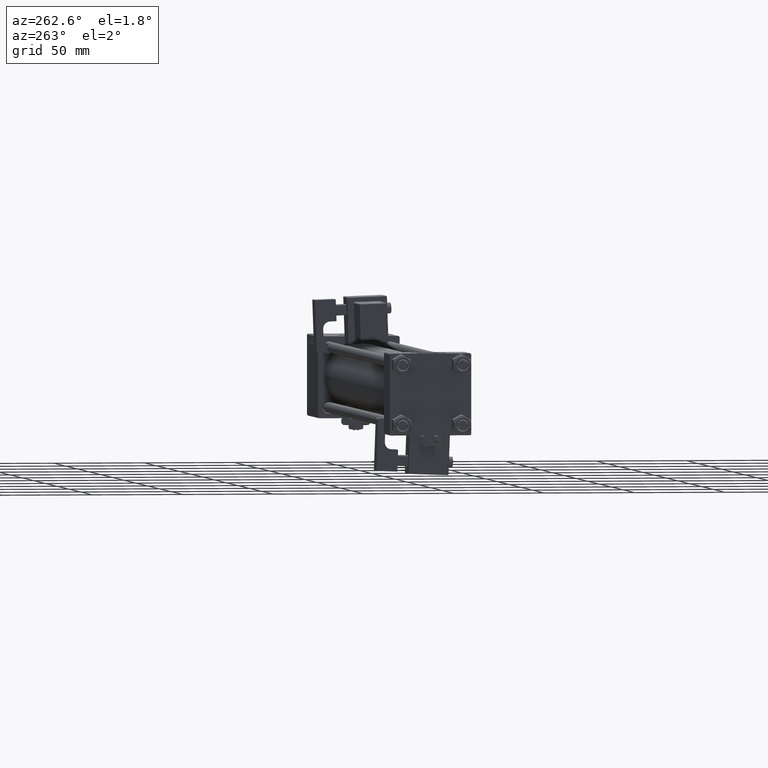
[diagram: clean part render]
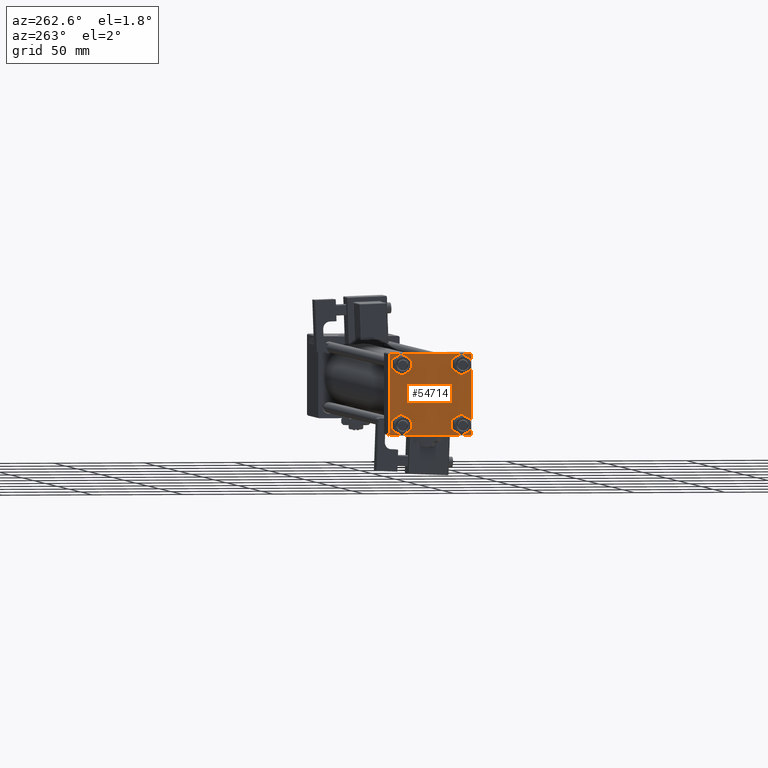
[diagram: same view with one face highlighted and labeled with its STEP entity id]
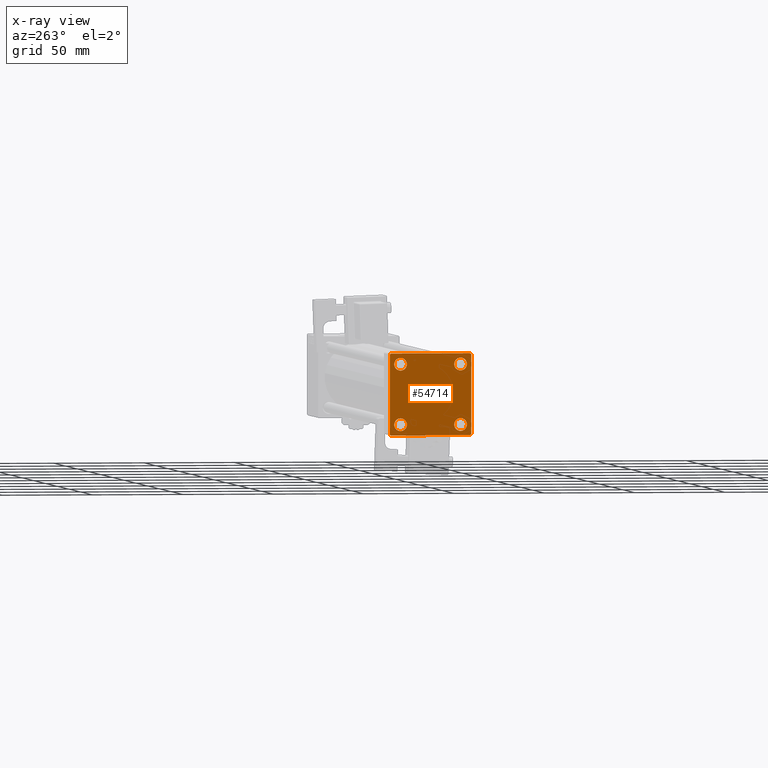
[diagram: x-ray of the same camera — body ghosted, the highlighted face saturated]
A machine part, auxiliary view. The second image highlights one B-rep face of the part: STEP entity #54714.
The next image is the same camera in x-ray: the body ghosted, the highlighted face saturated — about 0% of this face is hidden behind the body in this view.
In plain terms, the highlighted planar face has unit normal (-1, 0, 0).
Its self-contained STEP definition (entity closure, byte-faithful):
#105 = VECTOR ( 'NONE', #33758, 1000.000000000000000 ) ;
#603 = DIRECTION ( 'NONE',  ( 0.000000000000000000, 0.000000000000000000, 1.000000000000000000 ) ) ;
#919 = CIRCLE ( 'NONE', #11754, 3.499999999999996003 ) ;
#968 = VERTEX_POINT ( 'NONE', #51959 ) ;
#970 = VECTOR ( 'NONE', #10605, 999.9999999999998863 ) ;
#1074 = ORIENTED_EDGE ( 'NONE', *, *, #11173, .T. ) ;
#2198 = DIRECTION ( 'NONE',  ( 0.000000000000000000, 0.000000000000000000, 1.000000000000000000 ) ) ;
#2242 = LINE ( 'NONE', #33714, #21378 ) ;
#2474 = EDGE_CURVE ( 'NONE', #53949, #968, #23449, .T. ) ;
#2956 = EDGE_CURVE ( 'NONE', #32694, #15056, #53203, .T. ) ;
#3094 = DIRECTION ( 'NONE',  ( 1.000000000000000000, -0.000000000000000000, 0.000000000000000000 ) ) ;
#3568 = EDGE_CURVE ( 'NONE', #6486, #11495, #15126, .T. ) ;
#4281 = DIRECTION ( 'NONE',  ( 0.000000000000000000, 0.000000000000000000, 1.000000000000000000 ) ) ;
#4440 = VERTEX_POINT ( 'NONE', #37992 ) ;
#4482 = AXIS2_PLACEMENT_3D ( 'NONE', #25182, #29412, #4281 ) ;
#4513 = ORIENTED_EDGE ( 'NONE', *, *, #16772, .T. ) ;
#4691 = CARTESIAN_POINT ( 'NONE',  ( 0.000000000000000000, 22.50000000000000000, -21.99999999999996803 ) ) ;
#5660 = ORIENTED_EDGE ( 'NONE', *, *, #3568, .T. ) ;
#6400 = AXIS2_PLACEMENT_3D ( 'NONE', #10657, #40844, #2198 ) ;
#6486 = VERTEX_POINT ( 'NONE', #19664 ) ;
#6503 = CARTESIAN_POINT ( 'NONE',  ( 0.000000000000000000, -16.59999999999999076, 20.10000000000000853 ) ) ;
#6903 = CIRCLE ( 'NONE', #44774, 3.499999999999996003 ) ;
#7059 = CARTESIAN_POINT ( 'NONE',  ( 0.000000000000000000, 22.25000000000014566, -22.24999999999984013 ) ) ;
#9251 = VECTOR ( 'NONE', #36296, 1000.000000000000114 ) ;
#9759 = ORIENTED_EDGE ( 'NONE', *, *, #50745, .T. ) ;
#10373 = EDGE_LOOP ( 'NONE', ( #1074, #11081 ) ) ;
#10459 = DIRECTION ( 'NONE',  ( 0.000000000000000000, -0.7071067811865426878, 0.7071067811865524577 ) ) ;
#10605 = DIRECTION ( 'NONE',  ( -0.000000000000000000, 0.7071067811865525687, 0.7071067811865425767 ) ) ;
#10657 = CARTESIAN_POINT ( 'NONE',  ( 0.000000000000000000, 16.59999999999999787, 16.60000000000000497 ) ) ;
#10792 = VERTEX_POINT ( 'NONE', #50611 ) ;
#11073 = VECTOR ( 'NONE', #28508, 1000.000000000000000 ) ;
#11081 = ORIENTED_EDGE ( 'NONE', *, *, #2956, .T. ) ;
#11173 = EDGE_CURVE ( 'NONE', #15056, #32694, #919, .T. ) ;
#11495 = VERTEX_POINT ( 'NONE', #42768 ) ;
#11720 = FACE_OUTER_BOUND ( 'NONE', #50878, .T. ) ;
#11754 = AXIS2_PLACEMENT_3D ( 'NONE', #12165, #29370, #51642 ) ;
#11826 = ORIENTED_EDGE ( 'NONE', *, *, #34659, .T. ) ;
#11827 = CARTESIAN_POINT ( 'NONE',  ( 0.000000000000000000, -16.59999999999999076, 13.10000000000001030 ) ) ;
#12165 = CARTESIAN_POINT ( 'NONE',  ( 0.000000000000000000, 16.59999999999999787, -16.60000000000000497 ) ) ;
#12264 = PLANE ( 'NONE',  #33935 ) ;
#12599 = VERTEX_POINT ( 'NONE', #24198 ) ;
#12639 = AXIS2_PLACEMENT_3D ( 'NONE', #33810, #3094, #12947 ) ;
#12947 = DIRECTION ( 'NONE',  ( 0.000000000000000000, 0.000000000000000000, 1.000000000000000000 ) ) ;
#14003 = AXIS2_PLACEMENT_3D ( 'NONE', #44035, #39239, #603 ) ;
#15056 = VERTEX_POINT ( 'NONE', #41215 ) ;
#15126 = LINE ( 'NONE', #45587, #970 ) ;
#15967 = EDGE_CURVE ( 'NONE', #4440, #10792, #31671, .T. ) ;
#16094 = DIRECTION ( 'NONE',  ( 1.000000000000000000, -0.000000000000000000, 0.000000000000000000 ) ) ;
#16308 = CARTESIAN_POINT ( 'NONE',  ( 0.000000000000000000, 22.50000000000000000, 22.50000000000000355 ) ) ;
#16772 = EDGE_CURVE ( 'NONE', #12599, #35642, #24444, .T. ) ;
#17815 = LINE ( 'NONE', #34998, #22092 ) ;
#18455 = EDGE_LOOP ( 'NONE', ( #34678, #23376 ) ) ;
#19119 = CARTESIAN_POINT ( 'NONE',  ( 0.000000000000000000, 22.24999999999999645, 22.24999999999999645 ) ) ;
#19286 = DIRECTION ( 'NONE',  ( 0.000000000000000000, 0.000000000000000000, 1.000000000000000000 ) ) ;
#19664 = CARTESIAN_POINT ( 'NONE',  ( 0.000000000000000000, -22.50000000000000000, 22.00000000000000000 ) ) ;
#20462 = FACE_BOUND ( 'NONE', #18455, .T. ) ;
#20739 = DIRECTION ( 'NONE',  ( -0.000000000000000000, 0.000000000000000000, 1.000000000000000000 ) ) ;
#20741 = AXIS2_PLACEMENT_3D ( 'NONE', #50276, #44953, #19286 ) ;
#20777 = CIRCLE ( 'NONE', #6400, 3.499999999999996003 ) ;
#21378 = VECTOR ( 'NONE', #27355, 1000.000000000000000 ) ;
#21924 = LINE ( 'NONE', #16308, #105 ) ;
#22092 = VECTOR ( 'NONE', #10459, 1000.000000000000000 ) ;
#22539 = EDGE_LOOP ( 'NONE', ( #49077, #55471 ) ) ;
#22743 = VERTEX_POINT ( 'NONE', #11827 ) ;
#23376 = ORIENTED_EDGE ( 'NONE', *, *, #55161, .T. ) ;
#23449 = CIRCLE ( 'NONE', #20741, 3.499999999999996003 ) ;
#24198 = CARTESIAN_POINT ( 'NONE',  ( 0.000000000000000000, 21.99999999999999289, 22.50000000000000355 ) ) ;
#24444 = LINE ( 'NONE', #19119, #9251 ) ;
#24806 = DIRECTION ( 'NONE',  ( 0.000000000000000000, -1.000000000000000000, -2.312964634635742957E-16 ) ) ;
#24821 = LINE ( 'NONE', #7059, #11073 ) ;
#25182 = CARTESIAN_POINT ( 'NONE',  ( 0.000000000000000000, -16.59999999999999076, 16.60000000000000853 ) ) ;
#25965 = ORIENTED_EDGE ( 'NONE', *, *, #38289, .F. ) ;
#26593 = CIRCLE ( 'NONE', #14003, 3.499999999999996003 ) ;
#27155 = EDGE_CURVE ( 'NONE', #35642, #31182, #2242, .T. ) ;
#27355 = DIRECTION ( 'NONE',  ( 0.000000000000000000, 0.000000000000000000, -1.000000000000000000 ) ) ;
#27488 = VECTOR ( 'NONE', #38913, 1000.000000000000000 ) ;
#27528 = ORIENTED_EDGE ( 'NONE', *, *, #42251, .T. ) ;
#28508 = DIRECTION ( 'NONE',  ( -0.000000000000000000, -0.7071067811865426878, -0.7071067811865524577 ) ) ;
#29140 = CARTESIAN_POINT ( 'NONE',  ( 0.000000000000000000, 16.59999999999999787, -20.10000000000000142 ) ) ;
#29195 = FACE_BOUND ( 'NONE', #22539, .T. ) ;
#29370 = DIRECTION ( 'NONE',  ( 1.000000000000000000, -0.000000000000000000, 0.000000000000000000 ) ) ;
#29412 = DIRECTION ( 'NONE',  ( 1.000000000000000000, -0.000000000000000000, 0.000000000000000000 ) ) ;
#31182 = VERTEX_POINT ( 'NONE', #4691 ) ;
#31327 = ORIENTED_EDGE ( 'NONE', *, *, #50614, .T. ) ;
#31393 = CARTESIAN_POINT ( 'NONE',  ( 0.000000000000000000, 16.59999999999999787, 20.10000000000000142 ) ) ;
#31671 = LINE ( 'NONE', #31948, #38915 ) ;
#31948 = CARTESIAN_POINT ( 'NONE',  ( 0.000000000000000000, 22.50000000000000000, -22.49999999999999645 ) ) ;
#32694 = VERTEX_POINT ( 'NONE', #29140 ) ;
#32698 = EDGE_CURVE ( 'NONE', #50750, #22743, #52263, .T. ) ;
#32728 = CARTESIAN_POINT ( 'NONE',  ( 0.000000000000000000, -16.59999999999999076, 16.60000000000000853 ) ) ;
#32857 = FACE_BOUND ( 'NONE', #10373, .T. ) ;
#33714 = CARTESIAN_POINT ( 'NONE',  ( 0.000000000000000000, 22.50000000000000000, 22.50000000000000355 ) ) ;
#33758 = DIRECTION ( 'NONE',  ( 0.000000000000000000, -1.000000000000000000, -7.709882115452476934E-17 ) ) ;
#33810 = CARTESIAN_POINT ( 'NONE',  ( 0.000000000000000000, 16.59999999999999787, -16.60000000000000497 ) ) ;
#33935 = AXIS2_PLACEMENT_3D ( 'NONE', #54589, #50088, #20739 ) ;
#33969 = CIRCLE ( 'NONE', #46647, 3.499999999999996003 ) ;
#34659 = EDGE_CURVE ( 'NONE', #43815, #44326, #20777, .T. ) ;
#34678 = ORIENTED_EDGE ( 'NONE', *, *, #32698, .T. ) ;
#34859 = DIRECTION ( 'NONE',  ( 1.000000000000000000, -0.000000000000000000, 0.000000000000000000 ) ) ;
#34998 = CARTESIAN_POINT ( 'NONE',  ( 0.000000000000000000, -22.25000000000014566, -22.24999999999984013 ) ) ;
#35642 = VERTEX_POINT ( 'NONE', #39945 ) ;
#36296 = DIRECTION ( 'NONE',  ( 0.000000000000000000, 0.7071067811865474617, -0.7071067811865474617 ) ) ;
#37992 = CARTESIAN_POINT ( 'NONE',  ( 0.000000000000000000, 21.99999999999999289, -22.49999999999999645 ) ) ;
#38289 = EDGE_CURVE ( 'NONE', #12599, #11495, #21924, .T. ) ;
#38913 = DIRECTION ( 'NONE',  ( 0.000000000000000000, 0.000000000000000000, -1.000000000000000000 ) ) ;
#38915 = VECTOR ( 'NONE', #24806, 1000.000000000000000 ) ;
#39101 = CARTESIAN_POINT ( 'NONE',  ( 0.000000000000000000, -16.59999999999999076, -16.60000000000000853 ) ) ;
#39239 = DIRECTION ( 'NONE',  ( 1.000000000000000000, -0.000000000000000000, 0.000000000000000000 ) ) ;
#39379 = DIRECTION ( 'NONE',  ( 0.000000000000000000, 0.000000000000000000, 1.000000000000000000 ) ) ;
#39945 = CARTESIAN_POINT ( 'NONE',  ( 0.000000000000000000, 22.50000000000000000, 21.99999999999999645 ) ) ;
#40257 = VERTEX_POINT ( 'NONE', #52413 ) ;
#40396 = ORIENTED_EDGE ( 'NONE', *, *, #27155, .T. ) ;
#40844 = DIRECTION ( 'NONE',  ( 1.000000000000000000, -0.000000000000000000, 0.000000000000000000 ) ) ;
#41215 = CARTESIAN_POINT ( 'NONE',  ( 0.000000000000000000, 16.59999999999999787, -13.10000000000000675 ) ) ;
#41493 = DIRECTION ( 'NONE',  ( 0.000000000000000000, 0.000000000000000000, 1.000000000000000000 ) ) ;
#41815 = EDGE_LOOP ( 'NONE', ( #31327, #11826 ) ) ;
#42251 = EDGE_CURVE ( 'NONE', #31182, #4440, #24821, .T. ) ;
#42768 = CARTESIAN_POINT ( 'NONE',  ( 0.000000000000000000, -21.99999999999997868, 22.50000000000000000 ) ) ;
#43144 = CARTESIAN_POINT ( 'NONE',  ( 0.000000000000000000, -22.50000000000000000, 22.50000000000000000 ) ) ;
#43714 = LINE ( 'NONE', #43144, #27488 ) ;
#43815 = VERTEX_POINT ( 'NONE', #45672 ) ;
#44035 = CARTESIAN_POINT ( 'NONE',  ( 0.000000000000000000, 16.59999999999999787, 16.60000000000000497 ) ) ;
#44326 = VERTEX_POINT ( 'NONE', #31393 ) ;
#44774 = AXIS2_PLACEMENT_3D ( 'NONE', #39101, #34859, #39379 ) ;
#44953 = DIRECTION ( 'NONE',  ( 1.000000000000000000, -0.000000000000000000, 0.000000000000000000 ) ) ;
#45587 = CARTESIAN_POINT ( 'NONE',  ( -0.000000000000000000, -22.24999999999984013, 22.25000000000015277 ) ) ;
#45672 = CARTESIAN_POINT ( 'NONE',  ( 0.000000000000000000, 16.59999999999999787, 13.10000000000000675 ) ) ;
#46181 = ORIENTED_EDGE ( 'NONE', *, *, #46760, .F. ) ;
#46502 = ORIENTED_EDGE ( 'NONE', *, *, #15967, .T. ) ;
#46647 = AXIS2_PLACEMENT_3D ( 'NONE', #32728, #16094, #41493 ) ;
#46760 = EDGE_CURVE ( 'NONE', #6486, #40257, #43714, .T. ) ;
#46953 = CARTESIAN_POINT ( 'NONE',  ( 0.000000000000000000, -16.59999999999999076, -13.10000000000001030 ) ) ;
#49077 = ORIENTED_EDGE ( 'NONE', *, *, #2474, .T. ) ;
#49813 = FACE_BOUND ( 'NONE', #41815, .T. ) ;
#50088 = DIRECTION ( 'NONE',  ( -1.000000000000000000, 0.000000000000000000, -0.000000000000000000 ) ) ;
#50276 = CARTESIAN_POINT ( 'NONE',  ( 0.000000000000000000, -16.59999999999999076, -16.60000000000000853 ) ) ;
#50611 = CARTESIAN_POINT ( 'NONE',  ( 0.000000000000000000, -21.99999999999997158, -22.50000000000000711 ) ) ;
#50614 = EDGE_CURVE ( 'NONE', #44326, #43815, #26593, .T. ) ;
#50745 = EDGE_CURVE ( 'NONE', #10792, #40257, #17815, .T. ) ;
#50750 = VERTEX_POINT ( 'NONE', #6503 ) ;
#50878 = EDGE_LOOP ( 'NONE', ( #40396, #27528, #46502, #9759, #46181, #5660, #25965, #4513 ) ) ;
#51642 = DIRECTION ( 'NONE',  ( 0.000000000000000000, 0.000000000000000000, 1.000000000000000000 ) ) ;
#51959 = CARTESIAN_POINT ( 'NONE',  ( 0.000000000000000000, -16.59999999999999076, -20.10000000000000497 ) ) ;
#52263 = CIRCLE ( 'NONE', #4482, 3.499999999999996003 ) ;
#52413 = CARTESIAN_POINT ( 'NONE',  ( 0.000000000000000000, -22.50000000000000000, -21.99999999999997158 ) ) ;
#53203 = CIRCLE ( 'NONE', #12639, 3.499999999999996003 ) ;
#53541 = EDGE_CURVE ( 'NONE', #968, #53949, #6903, .T. ) ;
#53949 = VERTEX_POINT ( 'NONE', #46953 ) ;
#54589 = CARTESIAN_POINT ( 'NONE',  ( 0.000000000000000000, 0.000000000000000000, 0.000000000000000000 ) ) ;
#54714 = ADVANCED_FACE ( 'NONE', ( #20462, #29195, #32857, #49813, #11720 ), #12264, .T. ) ;
#55161 = EDGE_CURVE ( 'NONE', #22743, #50750, #33969, .T. ) ;
#55471 = ORIENTED_EDGE ( 'NONE', *, *, #53541, .T. ) ;